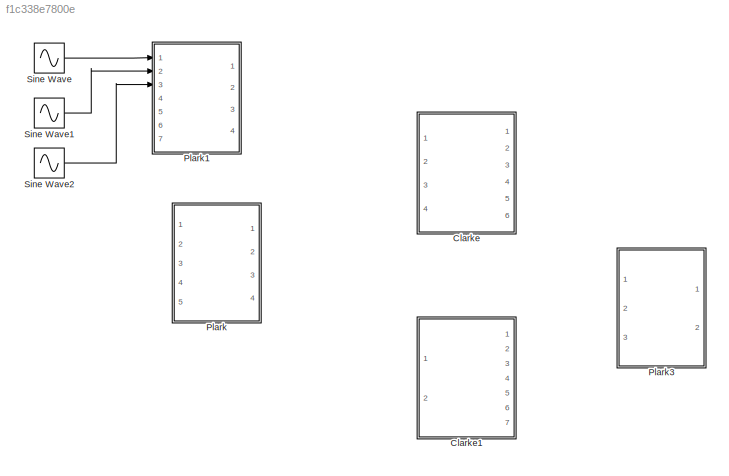
MODEL slx_f1c338e7800e
KIND model
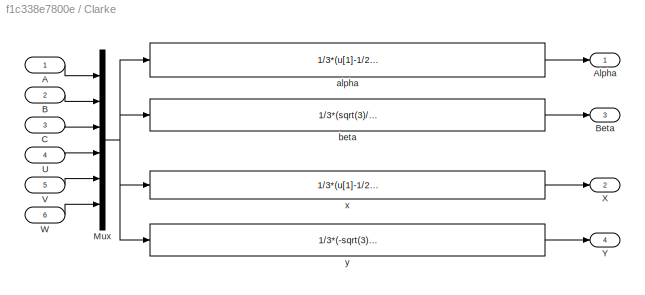
BLOCK [SubSystem] Clarke
  Ports = [6, 4]
  RequestExecContextInheritance = off
BLOCK [Inport] Clarke/A
  IconDisplay = Port number
BLOCK [Outport] Clarke/Alpha
  IconDisplay = Port number
BLOCK [Inport] Clarke/B
  IconDisplay = Port number
  Port = 2
BLOCK [Outport] Clarke/Beta
  IconDisplay = Port number
  Port = 3
BLOCK [Inport] Clarke/C
  IconDisplay = Port number
  Port = 3
BLOCK [Mux] Clarke/Mux
  DisplayOption = bar
  Inputs = 6
  Ports = [6, 1]
BLOCK [Inport] Clarke/U
  IconDisplay = Port number
  Port = 4
BLOCK [Inport] Clarke/V
  IconDisplay = Port number
  Port = 5
BLOCK [Inport] Clarke/W
  IconDisplay = Port number
  Port = 6
BLOCK [Outport] Clarke/X
  IconDisplay = Port number
  Port = 2
BLOCK [Outport] Clarke/Y
  IconDisplay = Port number
  Port = 4
BLOCK [Fcn] Clarke/alpha
  Expr = 1/3*(u[1]-1/2*u[2]-1/2*u[3]+sqrt(3)/2*u[4]-sqrt(3)/2*u[5])
BLOCK [Fcn] Clarke/beta
  Expr = 1/3*(sqrt(3)/2*u[2]-sqrt(3)/2*u[3]+1/2*u[4]+1/2*u[5]-u[6])
BLOCK [Fcn] Clarke/x
  Expr = 1/3*(u[1]-1/2*u[2]-1/2*u[3]-sqrt(3)/2*u[4]+sqrt(3)/2*u[5])
BLOCK [Fcn] Clarke/y
  Expr = 1/3*(-sqrt(3)/2*u[2]+sqrt(3)/2*u[3]+1/2*u[4]+1/2*u[5]-u[6])
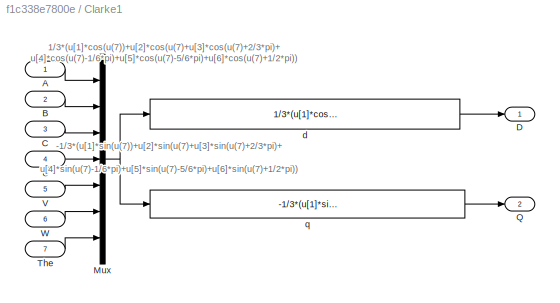
BLOCK [SubSystem] Clarke1
  Ports = [7, 2]
  RequestExecContextInheritance = off
BLOCK [Inport] Clarke1/A
  IconDisplay = Port number
BLOCK [Inport] Clarke1/B
  IconDisplay = Port number
  Port = 2
BLOCK [Inport] Clarke1/C
  IconDisplay = Port number
  Port = 3
BLOCK [Outport] Clarke1/D
  IconDisplay = Port number
BLOCK [Mux] Clarke1/Mux
  DisplayOption = bar
  Inputs = 7
  Ports = [7, 1]
BLOCK [Outport] Clarke1/Q
  IconDisplay = Port number
  Port = 2
BLOCK [Inport] Clarke1/The
  IconDisplay = Port number
  Port = 7
BLOCK [Inport] Clarke1/U
  IconDisplay = Port number
  Port = 4
BLOCK [Inport] Clarke1/V
  IconDisplay = Port number
  Port = 5
BLOCK [Inport] Clarke1/W
  IconDisplay = Port number
  Port = 6
BLOCK [Fcn] Clarke1/d
  Expr = 1/3*(u[1]*cos(u(7))+u[2]*cos(u(7)+u[3]*cos(u(7)+2/3*pi)+u[4]*cos(u(7)-1/6*pi)+u[5]*cos(u(7)-5/6*pi)+u[6]*cos(u(7)+1/2*pi))
BLOCK [Fcn] Clarke1/q
  Expr = -1/3*(u[1]*sin(u(7))+u[2]*sin(u(7)+u[3]*sin(u(7)+2/3*pi)+u[4]*sin(u(7)-1/6*pi)+u[5]*sin(u(7)-5/6*pi)+u[6]*sin(u(7)+1/2*pi))
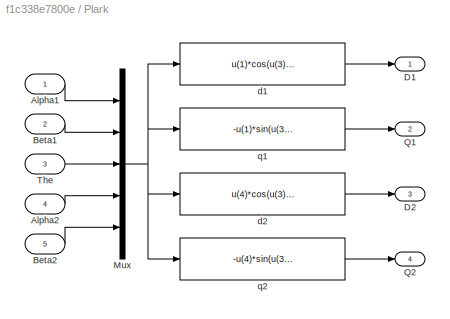
BLOCK [SubSystem] Plark
  Ports = [5, 4]
  RequestExecContextInheritance = off
BLOCK [Inport] Plark/Alpha1
  IconDisplay = Port number
BLOCK [Inport] Plark/Alpha2
  IconDisplay = Port number
  Port = 4
BLOCK [Inport] Plark/Beta1
  IconDisplay = Port number
  Port = 2
BLOCK [Inport] Plark/Beta2
  IconDisplay = Port number
  Port = 5
BLOCK [Outport] Plark/D1
  IconDisplay = Port number
BLOCK [Outport] Plark/D2
  IconDisplay = Port number
  Port = 3
BLOCK [Mux] Plark/Mux
  DisplayOption = bar
  Inputs = 5
  Ports = [5, 1]
BLOCK [Outport] Plark/Q1
  IconDisplay = Port number
  Port = 2
BLOCK [Outport] Plark/Q2
  IconDisplay = Port number
  Port = 4
BLOCK [Inport] Plark/The
  IconDisplay = Port number
  Port = 3
BLOCK [Fcn] Plark/d1
  Expr = u(1)*cos(u(3))+u(2)*sin(u(3))
BLOCK [Fcn] Plark/d2
  Expr = u(4)*cos(u(3))+u(5)*sin(u(3))
BLOCK [Fcn] Plark/q1
  Expr = -u(1)*sin(u(3))+u(2)*cos(u(3))
BLOCK [Fcn] Plark/q2
  Expr = -u(4)*sin(u(3))+u(5)*cos(u(3))
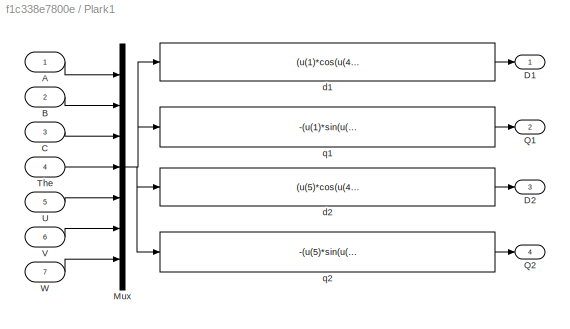
BLOCK [SubSystem] Plark1
  Ports = [7, 4]
  RequestExecContextInheritance = off
BLOCK [Inport] Plark1/A
  IconDisplay = Port number
BLOCK [Inport] Plark1/B
  IconDisplay = Port number
  Port = 2
BLOCK [Inport] Plark1/C
  IconDisplay = Port number
  Port = 3
BLOCK [Outport] Plark1/D1
  IconDisplay = Port number
BLOCK [Outport] Plark1/D2
  IconDisplay = Port number
  Port = 3
BLOCK [Mux] Plark1/Mux
  DisplayOption = bar
  Inputs = 7
  Ports = [7, 1]
BLOCK [Outport] Plark1/Q1
  IconDisplay = Port number
  Port = 2
BLOCK [Outport] Plark1/Q2
  IconDisplay = Port number
  Port = 4
BLOCK [Inport] Plark1/The
  IconDisplay = Port number
  Port = 4
BLOCK [Inport] Plark1/U
  IconDisplay = Port number
  Port = 5
BLOCK [Inport] Plark1/V
  IconDisplay = Port number
  Port = 6
BLOCK [Inport] Plark1/W
  IconDisplay = Port number
  Port = 7
BLOCK [Fcn] Plark1/d1
  Expr = (u(1)*cos(u(4))+u(2)*cos(u(4)-2/3*pi)+u(3)*cos(u(4)+2/3*pi))*2/3
BLOCK [Fcn] Plark1/d2
  Expr = (u(5)*cos(u(4)-pi/6)+u(6)*cos(u(4)-5/6*pi)+u(7)*cos(u(4)+1/2*pi))*2/3
BLOCK [Fcn] Plark1/q1
  Expr = -(u(1)*sin(u(4))+u(2)*sin(u(4)-2/3*pi)+u(3)*sin(u(4)+2/3*pi))*2/3
BLOCK [Fcn] Plark1/q2
  Expr = -(u(5)*sin(u(4)-pi/6)+u(6)*sin(u(4)-5/6*pi)+u(7)*sin(u(4)+1/2*pi))*2/3
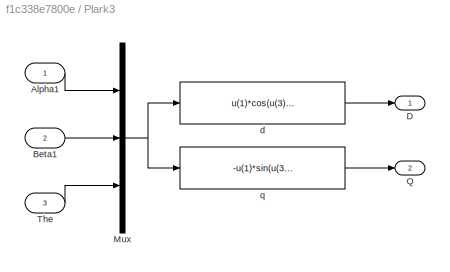
BLOCK [SubSystem] Plark3
  Ports = [3, 2]
  RequestExecContextInheritance = off
BLOCK [Inport] Plark3/Alpha1
  IconDisplay = Port number
BLOCK [Inport] Plark3/Beta1
  IconDisplay = Port number
  Port = 2
BLOCK [Outport] Plark3/D
  IconDisplay = Port number
BLOCK [Mux] Plark3/Mux
  DisplayOption = bar
  Inputs = 3
  Ports = [3, 1]
BLOCK [Outport] Plark3/Q
  IconDisplay = Port number
  Port = 2
BLOCK [Inport] Plark3/The
  IconDisplay = Port number
  Port = 3
BLOCK [Fcn] Plark3/d
  Expr = u(1)*cos(u(3))+u(2)*sin(u(3))
BLOCK [Fcn] Plark3/q
  Expr = -u(1)*sin(u(3))+u(2)*cos(u(3))
BLOCK [Sin] Sine Wave
  Amplitude = 100
  Frequency = 2*pi*50
  Ports = [0, 1]
  SampleTime = 10e-6
BLOCK [Sin] Sine Wave1
  Amplitude = 100
  Frequency = 2*pi*50
  Phase = -2/3*pi
  Ports = [0, 1]
  SampleTime = 10e-6
BLOCK [Sin] Sine Wave2
  Amplitude = 100
  Frequency = 2*pi*50
  Phase = 2/3*pi
  Ports = [0, 1]
  SampleTime = 10e-6
ANNOTATION Clarke1: -1/3*(u[1]*sin(u(7))+u[2]*sin(u(7)+u[3]*sin(u(7)+2/3*pi)+ u[4]*sin(u(7)-1/6*pi)+u[5]*sin(u(7)-5/6*pi)+u[6]*sin(u(7)+1/2*pi))
ANNOTATION Clarke1: 1/3*(u[1]*cos(u(7))+u[2]*cos(u(7)+u[3]*cos(u(7)+2/3*pi)+ u[4]*cos(u(7)-1/6*pi)+u[5]*cos(u(7)-5/6*pi)+u[6]*cos(u(7)+1/2*pi))
LINE Clarke/A:1 -> Clarke/Mux:1
LINE Clarke/B:1 -> Clarke/Mux:2
LINE Clarke/C:1 -> Clarke/Mux:3
NET Clarke/Mux:1 -> Clarke/alpha:1, Clarke/beta:1, Clarke/x:1, Clarke/y:1
LINE Clarke/U:1 -> Clarke/Mux:4
LINE Clarke/V:1 -> Clarke/Mux:5
LINE Clarke/W:1 -> Clarke/Mux:6
LINE Clarke/alpha:1 -> Clarke/Alpha:1
LINE Clarke/beta:1 -> Clarke/Beta:1
LINE Clarke/x:1 -> Clarke/X:1
LINE Clarke/y:1 -> Clarke/Y:1
LINE Clarke1/A:1 -> Clarke1/Mux:1
LINE Clarke1/B:1 -> Clarke1/Mux:2
LINE Clarke1/C:1 -> Clarke1/Mux:3
NET Clarke1/Mux:1 -> Clarke1/d:1, Clarke1/q:1
LINE Clarke1/The:1 -> Clarke1/Mux:7
LINE Clarke1/U:1 -> Clarke1/Mux:4
LINE Clarke1/V:1 -> Clarke1/Mux:5
LINE Clarke1/W:1 -> Clarke1/Mux:6
LINE Clarke1/d:1 -> Clarke1/D:1
LINE Clarke1/q:1 -> Clarke1/Q:1
LINE Plark/Alpha1:1 -> Plark/Mux:1
LINE Plark/Alpha2:1 -> Plark/Mux:4
LINE Plark/Beta1:1 -> Plark/Mux:2
LINE Plark/Beta2:1 -> Plark/Mux:5
NET Plark/Mux:1 -> Plark/d1:1, Plark/d2:1, Plark/q1:1, Plark/q2:1
LINE Plark/The:1 -> Plark/Mux:3
LINE Plark/d1:1 -> Plark/D1:1
LINE Plark/d2:1 -> Plark/D2:1
LINE Plark/q1:1 -> Plark/Q1:1
LINE Plark/q2:1 -> Plark/Q2:1
LINE Plark1/A:1 -> Plark1/Mux:1
LINE Plark1/B:1 -> Plark1/Mux:2
LINE Plark1/C:1 -> Plark1/Mux:3
NET Plark1/Mux:1 -> Plark1/d1:1, Plark1/d2:1, Plark1/q1:1, Plark1/q2:1
LINE Plark1/The:1 -> Plark1/Mux:4
LINE Plark1/U:1 -> Plark1/Mux:5
LINE Plark1/V:1 -> Plark1/Mux:6
LINE Plark1/W:1 -> Plark1/Mux:7
LINE Plark1/d1:1 -> Plark1/D1:1
LINE Plark1/d2:1 -> Plark1/D2:1
LINE Plark1/q1:1 -> Plark1/Q1:1
LINE Plark1/q2:1 -> Plark1/Q2:1
LINE Plark3/Alpha1:1 -> Plark3/Mux:1
LINE Plark3/Beta1:1 -> Plark3/Mux:2
NET Plark3/Mux:1 -> Plark3/d:1, Plark3/q:1
LINE Plark3/The:1 -> Plark3/Mux:3
LINE Plark3/d:1 -> Plark3/D:1
LINE Plark3/q:1 -> Plark3/Q:1
LINE Sine Wave1:1 -> Plark1:2
LINE Sine Wave2:1 -> Plark1:3
LINE Sine Wave:1 -> Plark1:1
note: NET lines group one-source signal fan-out (src -> all destinations, sorted); 1:1 wires keep LINE
